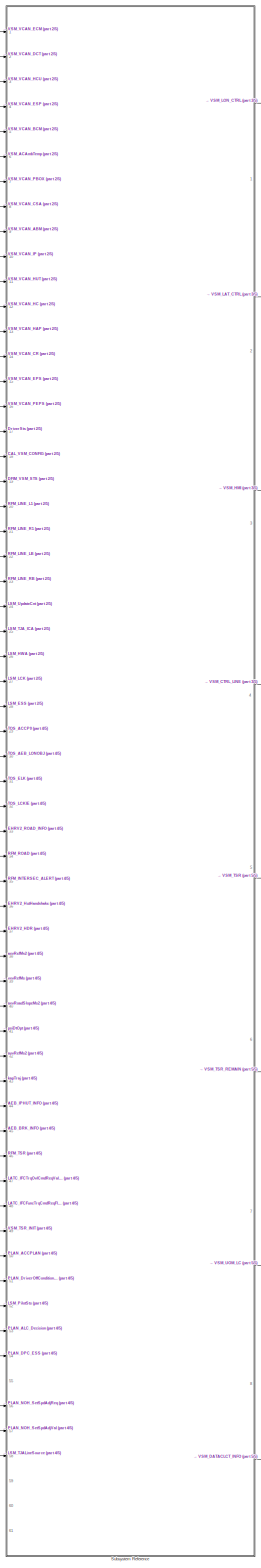
[diagram: root canvas - part 1/5, center side, full height]
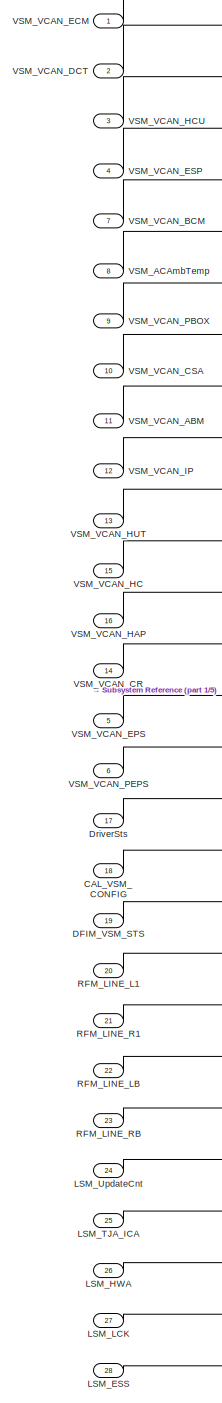
[diagram: root canvas - part 2/5, top left region]
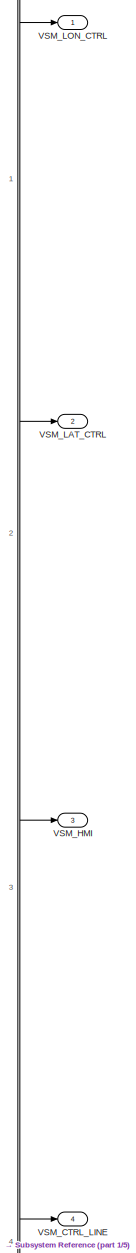
[diagram: root canvas - part 3/5, top right region]
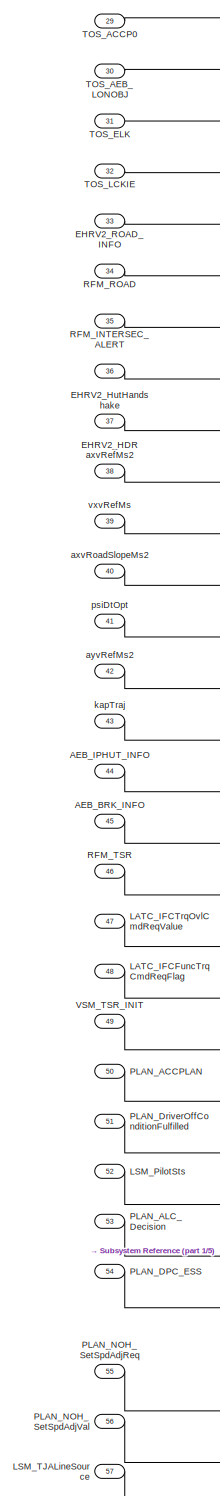
[diagram: root canvas - part 4/5, bottom left region]
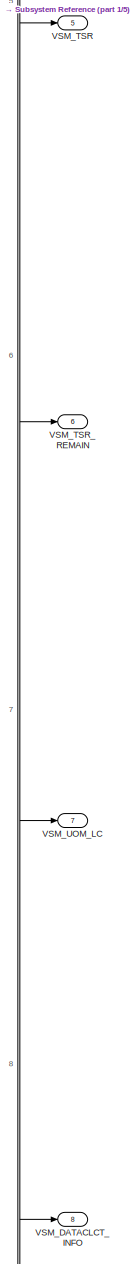
[diagram: root canvas - part 5/5, bottom right region]
MODEL slx_b255fe1d01b4
KIND model
CONFIG AbsTol = auto
CONFIG EnableMultiTasking = off
CONFIG FixedStep = auto
CONFIG InitFcn = , if any(exist('rtifpga_mdlclblib', 'file') ~= 0), rtifpga_mdlclblib('Init', bdroot); end,\n, if any(exist('dsmpb_private', 'file') ~= 0), dsmpb_private('dsmpb_mdlclblib', 'Init', bdroot); end,\n
CONFIG MaxStep = auto
CONFIG MinStep = auto
CONFIG PostLoadFcn = if any(exist('dsrtsu_mdlpostloadfcn', 'file') ~= 0), dsrtsu_mdlpostloadfcn('Execute', bdroot); end
CONFIG RelTol = 1e-3
CONFIG SampleTimeConstraint = Unconstrained
CONFIG SolverName = FixedStepAuto
CONFIG StartTime = 0.0
CONFIG StopTime = Inf
WORKSPACE source: mxarray member
WORKSPACE P_VSM_ESS_DriverInputdSameDire_delaytime: Simulink.Parameter (value not decoded)
WORKSPACE P_VSM_ESS_DrvOverTime_Paramsame: Simulink.Parameter (value not decoded)
WORKSPACE P_VSM_PassSBRSpdIPLimt: Simulink.Parameter (value not decoded)
WORKSPACE P_VSM_TJA_PassSBRSpdExistSlow: Simulink.Parameter (value not decoded)
WORKSPACE User_ACCRes: Simulink.Signal (value not decoded)
WORKSPACE User_ACCSet: Simulink.Signal (value not decoded)
WORKSPACE User_TJASet: Simulink.Signal (value not decoded)
BLOCK [Inport] AEB_BRK_INFO
  BusOutputAsStruct = on
  OutDataTypeStr = Bus: AEB_BRK_INFO_BUS
  Port = 45
  PortDimensions = 1
BLOCK [Inport] AEB_IPHUT_INFO
  BusOutputAsStruct = on
  OutDataTypeStr = Bus: AEB_IPHUT_INFO_BUS
  Port = 44
  PortDimensions = 1
BLOCK [Inport] CAL_VSM_CONFIG
  BusOutputAsStruct = on
  OutDataTypeStr = Bus: CAL_VSM_CONFIG_BUS
  Port = 18
  PortDimensions = 1
BLOCK [Inport] DFIM_VSM_STS
  BusOutputAsStruct = on
  OutDataTypeStr = Bus: DFIM_VSM_STS_BUS
  Port = 19
  PortDimensions = 1
BLOCK [Inport] DriverSts
  BusOutputAsStruct = on
  OutDataTypeStr = uint8
  Port = 17
  PortDimensions = 1
BLOCK [Inport] EHRV2_HDR
  BusOutputAsStruct = on
  OutDataTypeStr = Bus: EHRV2_HDR_BUS
  Port = 37
  PortDimensions = 1
BLOCK [Inport] EHRV2_HutHandshake
  BusOutputAsStruct = on
  OutDataTypeStr = uint8
  Port = 36
  PortDimensions = 1
BLOCK [Inport] EHRV2_ROAD_INFO
  BusOutputAsStruct = on
  OutDataTypeStr = Bus: EHRV2_ROAD_INFO_BUS
  Port = 33
  PortDimensions = 1
BLOCK [Inport] LATC_IFCFuncTrqCmdReqFlag
  BusOutputAsStruct = on
  OutDataTypeStr = uint8
  Port = 48
  PortDimensions = 1
BLOCK [Inport] LATC_IFCTrqOvlCmdReqValue
  BusOutputAsStruct = on
  OutDataTypeStr = single
  Port = 47
  PortDimensions = 1
BLOCK [Inport] LSM_ESS
  BusOutputAsStruct = on
  OutDataTypeStr = Bus: LSM_ESS_BUS
  Port = 28
  PortDimensions = 1
BLOCK [Inport] LSM_HWA
  BusOutputAsStruct = on
  OutDataTypeStr = Bus: LSM_HWA_BUS
  Port = 26
  PortDimensions = 1
BLOCK [Inport] LSM_LCK
  BusOutputAsStruct = on
  OutDataTypeStr = Bus: LSM_LCK_BUS
  Port = 27
  PortDimensions = 1
BLOCK [Inport] LSM_PilotSts
  BusOutputAsStruct = on
  OutDataTypeStr = uint8
  Port = 52
  PortDimensions = 1
BLOCK [Inport] LSM_TJALineSource
  Port = 57
BLOCK [Inport] LSM_TJA_ICA
  BusOutputAsStruct = on
  OutDataTypeStr = Bus: LSM_TJA_ICA_BUS
  Port = 25
  PortDimensions = 1
BLOCK [Inport] LSM_UpdateCnt
  BusOutputAsStruct = on
  OutDataTypeStr = uint32
  Port = 24
  PortDimensions = 1
BLOCK [Inport] PLAN_ACCPLAN
  BusOutputAsStruct = on
  OutDataTypeStr = Bus: PLAN_ACCPLAN_BUS
  Port = 50
  PortDimensions = 1
BLOCK [Inport] PLAN_ALC_Decision
  OutDataTypeStr = Bus: PLAN_ALC_DECS_BUS
  Port = 53
BLOCK [Inport] PLAN_DPC_ESS
  OutDataTypeStr = Bus: PLAN_DPC_ESS_BUS
  Port = 54
BLOCK [Inport] PLAN_DriverOffConditionFulfilled
  BusOutputAsStruct = on
  OutDataTypeStr = boolean
  Port = 51
  PortDimensions = 1
BLOCK [Inport] PLAN_NOH_SetSpdAdjReq
  OutDataTypeStr = boolean
  Port = 55
BLOCK [Inport] PLAN_NOH_SetSpdAdjVal
  OutDataTypeStr = uint8
  Port = 56
BLOCK [Inport] RFM_INTERSEC_ALERT
  BusOutputAsStruct = on
  OutDataTypeStr = Bus: RFM_INTERSEC_ALERT_BUS
  Port = 35
  PortDimensions = 1
BLOCK [Inport] RFM_LINE_L1
  BusOutputAsStruct = on
  OutDataTypeStr = Bus: RFM_LINE_BUS
  Port = 20
  PortDimensions = 1
BLOCK [Inport] RFM_LINE_LB
  BusOutputAsStruct = on
  OutDataTypeStr = Bus: RFM_LINE_BUS
  Port = 22
  PortDimensions = 1
BLOCK [Inport] RFM_LINE_R1
  BusOutputAsStruct = on
  OutDataTypeStr = Bus: RFM_LINE_BUS
  Port = 21
  PortDimensions = 1
BLOCK [Inport] RFM_LINE_RB
  BusOutputAsStruct = on
  OutDataTypeStr = Bus: RFM_LINE_BUS
  Port = 23
  PortDimensions = 1
BLOCK [Inport] RFM_ROAD
  BusOutputAsStruct = on
  OutDataTypeStr = Bus: RFM_ROAD_BUS
  Port = 34
  PortDimensions = 1
BLOCK [Inport] RFM_TSR
  BusOutputAsStruct = on
  OutDataTypeStr = Bus: RFM_TSR_BUS
  Port = 46
  PortDimensions = 1
BLOCK [SubSystem] Subsystem Reference
  Ports = [61, 8]
  ReferencedSubsystem = PvtSubSys_VSM_ALL
  RequestExecContextInheritance = off
BLOCK [Inport] TOS_ACCP0
  BusOutputAsStruct = on
  OutDataTypeStr = Bus: TOS_ACCP0_BUS
  Port = 29
  PortDimensions = 1
BLOCK [Inport] TOS_AEB_LONOBJ
  BusOutputAsStruct = on
  OutDataTypeStr = Bus: TOS_AEB_LONOBJ_BUS
  Port = 30
  PortDimensions = 1
BLOCK [Inport] TOS_ELK
  BusOutputAsStruct = on
  OutDataTypeStr = Bus: TOS_ELK_BUS
  Port = 31
  PortDimensions = 1
BLOCK [Inport] TOS_LCKIE
  BusOutputAsStruct = on
  OutDataTypeStr = Bus: TOS_LCKIE_BUS
  Port = 32
  PortDimensions = 1
BLOCK [Inport] VSM_ACAmbTemp
  BusOutputAsStruct = on
  OutDataTypeStr = Bus: VCAN_AC_MSG_BUS
  Port = 8
  PortDimensions = 1
BLOCK [Outport] VSM_CTRL_LINE
  BusOutputAsStruct = on
  OutDataTypeStr = Bus: VSM_CTRL_LINE_BUS
  Port = 4
  PortDimensions = 1
BLOCK [Outport] VSM_DATACLCT_INFO
  BusOutputAsStruct = on
  OutDataTypeStr = Bus: VSM_DATACLCT_INFO_BUS
  Port = 8
  PortDimensions = 1
BLOCK [Outport] VSM_HMI
  BusOutputAsStruct = on
  OutDataTypeStr = Bus: VSM_HMI_BUS
  Port = 3
  PortDimensions = 1
BLOCK [Outport] VSM_LAT_CTRL
  BusOutputAsStruct = on
  OutDataTypeStr = Bus: VSM_LAT_CTRL_BUS
  Port = 2
BLOCK [Outport] VSM_LON_CTRL
  BusOutputAsStruct = on
  OutDataTypeStr = Bus: VSM_LON_CTRL_BUS
  PortDimensions = 1
BLOCK [Outport] VSM_TSR
  BusOutputAsStruct = on
  OutDataTypeStr = Bus: VSM_TSR_BUS
  Port = 5
  PortDimensions = 1
BLOCK [Inport] VSM_TSR_INIT
  BusOutputAsStruct = on
  OutDataTypeStr = Bus: VSM_TSR_INIT_BUS
  Port = 49
  PortDimensions = 1
BLOCK [Outport] VSM_TSR_REMAIN
  BusOutputAsStruct = on
  OutDataTypeStr = Bus: VSM_TSR_REMAIN_BUS
  Port = 6
BLOCK [Outport] VSM_UOM_LC
  BusOutputAsStruct = on
  OutDataTypeStr = Bus: VSM_UOM_LC_BUS
  Port = 7
  PortDimensions = 1
BLOCK [Inport] VSM_VCAN_ABM
  BusOutputAsStruct = on
  OutDataTypeStr = Bus: VCAN_ABM_MSG_BUS
  Port = 11
  PortDimensions = 1
BLOCK [Inport] VSM_VCAN_BCM
  BusOutputAsStruct = on
  OutDataTypeStr = Bus: VCAN_BCM_MSG_BUS
  Port = 7
  PortDimensions = 1
BLOCK [Inport] VSM_VCAN_CR
  BusOutputAsStruct = on
  OutDataTypeStr = Bus: VCAN_CR_MSG_BUS
  Port = 14
  PortDimensions = 1
BLOCK [Inport] VSM_VCAN_CSA
  BusOutputAsStruct = on
  OutDataTypeStr = Bus: VCAN_CSA_MSG_BUS
  Port = 10
  PortDimensions = 1
BLOCK [Inport] VSM_VCAN_DCT
  BusOutputAsStruct = on
  OutDataTypeStr = Bus: VCAN_DCT_MSG_BUS
  Port = 2
  PortDimensions = 1
BLOCK [Inport] VSM_VCAN_ECM
  BusOutputAsStruct = on
  OutDataTypeStr = Bus: VCAN_ECM_MSG_BUS
  PortDimensions = 1
BLOCK [Inport] VSM_VCAN_EPS
  BusOutputAsStruct = on
  OutDataTypeStr = Bus: VCAN_EPS_MSG_BUS
  Port = 5
  PortDimensions = 1
BLOCK [Inport] VSM_VCAN_ESP
  BusOutputAsStruct = on
  OutDataTypeStr = Bus: VCAN_ESP_MSG_BUS
  Port = 4
  PortDimensions = 1
BLOCK [Inport] VSM_VCAN_HAP
  BusOutputAsStruct = on
  OutDataTypeStr = Bus: VCAN_HAP_MSG_BUS
  Port = 16
  PortDimensions = 1
BLOCK [Inport] VSM_VCAN_HC
  BusOutputAsStruct = on
  OutDataTypeStr = Bus: VCAN_HC_MSG_BUS
  Port = 15
  PortDimensions = 1
BLOCK [Inport] VSM_VCAN_HCU
  BusOutputAsStruct = on
  OutDataTypeStr = Bus: VCAN_HCU_MSG_BUS
  Port = 3
  PortDimensions = 1
BLOCK [Inport] VSM_VCAN_HUT
  BusOutputAsStruct = on
  OutDataTypeStr = Bus: VCAN_HUT_MSG_BUS
  Port = 13
  PortDimensions = 1
BLOCK [Inport] VSM_VCAN_IP
  BusOutputAsStruct = on
  OutDataTypeStr = Bus: VCAN_IP_MSG_BUS
  Port = 12
  PortDimensions = 1
BLOCK [Inport] VSM_VCAN_PBOX
  BusOutputAsStruct = on
  OutDataTypeStr = Bus: VCAN_PBOX_MSG_BUS
  Port = 9
  PortDimensions = 1
BLOCK [Inport] VSM_VCAN_PEPS
  BusOutputAsStruct = on
  OutDataTypeStr = Bus: VCAN_PEPS_MSG_BUS
  Port = 6
  PortDimensions = 1
BLOCK [Inport] axvRefMs2
  BusOutputAsStruct = on
  OutDataTypeStr = single
  Port = 38
  PortDimensions = 1
BLOCK [Inport] axvRoadSlopeMs2
  BusOutputAsStruct = on
  OutDataTypeStr = single
  Port = 40
  PortDimensions = 1
BLOCK [Inport] ayvRefMs2
  BusOutputAsStruct = on
  OutDataTypeStr = single
  Port = 42
  PortDimensions = 1
BLOCK [Inport] kapTraj
  BusOutputAsStruct = on
  OutDataTypeStr = single
  Port = 43
  PortDimensions = 1
BLOCK [Inport] psiDtOpt
  BusOutputAsStruct = on
  OutDataTypeStr = single
  Port = 41
  PortDimensions = 1
BLOCK [Inport] vxvRefMs
  BusOutputAsStruct = on
  OutDataTypeStr = single
  Port = 39
  PortDimensions = 1
LINE AEB_BRK_INFO:1 -> Subsystem Reference:45
LINE AEB_IPHUT_INFO:1 -> Subsystem Reference:44
LINE CAL_VSM_CONFIG:1 -> Subsystem Reference:18
LINE DFIM_VSM_STS:1 -> Subsystem Reference:19
LINE DriverSts:1 -> Subsystem Reference:17
LINE EHRV2_HDR:1 -> Subsystem Reference:37
LINE EHRV2_HutHandshake:1 -> Subsystem Reference:36
LINE EHRV2_ROAD_INFO:1 -> Subsystem Reference:33
LINE LATC_IFCFuncTrqCmdReqFlag:1 -> Subsystem Reference:48
LINE LATC_IFCTrqOvlCmdReqValue:1 -> Subsystem Reference:47
LINE LSM_ESS:1 -> Subsystem Reference:28
LINE LSM_HWA:1 -> Subsystem Reference:26
LINE LSM_LCK:1 -> Subsystem Reference:27
LINE LSM_PilotSts:1 -> Subsystem Reference:52
LINE LSM_TJALineSource:1 -> Subsystem Reference:58
LINE LSM_TJA_ICA:1 -> Subsystem Reference:25
LINE LSM_UpdateCnt:1 -> Subsystem Reference:24
LINE PLAN_ACCPLAN:1 -> Subsystem Reference:50
LINE PLAN_ALC_Decision:1 -> Subsystem Reference:53
LINE PLAN_DPC_ESS:1 -> Subsystem Reference:54
LINE PLAN_DriverOffConditionFulfilled:1 -> Subsystem Reference:51
LINE PLAN_NOH_SetSpdAdjReq:1 -> Subsystem Reference:56
LINE PLAN_NOH_SetSpdAdjVal:1 -> Subsystem Reference:57
LINE RFM_INTERSEC_ALERT:1 -> Subsystem Reference:35
LINE RFM_LINE_L1:1 -> Subsystem Reference:20
LINE RFM_LINE_LB:1 -> Subsystem Reference:22
LINE RFM_LINE_R1:1 -> Subsystem Reference:21
LINE RFM_LINE_RB:1 -> Subsystem Reference:23
LINE RFM_ROAD:1 -> Subsystem Reference:34
LINE RFM_TSR:1 -> Subsystem Reference:46
LINE Subsystem Reference:1 -> VSM_LON_CTRL:1
LINE Subsystem Reference:2 -> VSM_LAT_CTRL:1
LINE Subsystem Reference:3 -> VSM_HMI:1
LINE Subsystem Reference:4 -> VSM_CTRL_LINE:1
LINE Subsystem Reference:5 -> VSM_TSR:1
LINE Subsystem Reference:6 -> VSM_TSR_REMAIN:1
LINE Subsystem Reference:7 -> VSM_UOM_LC:1
LINE Subsystem Reference:8 -> VSM_DATACLCT_INFO:1
LINE TOS_ACCP0:1 -> Subsystem Reference:29
LINE TOS_AEB_LONOBJ:1 -> Subsystem Reference:30
LINE TOS_ELK:1 -> Subsystem Reference:31
LINE TOS_LCKIE:1 -> Subsystem Reference:32
LINE VSM_ACAmbTemp:1 -> Subsystem Reference:6
LINE VSM_TSR_INIT:1 -> Subsystem Reference:49
LINE VSM_VCAN_ABM:1 -> Subsystem Reference:9
LINE VSM_VCAN_BCM:1 -> Subsystem Reference:5
LINE VSM_VCAN_CR:1 -> Subsystem Reference:14
LINE VSM_VCAN_CSA:1 -> Subsystem Reference:8
LINE VSM_VCAN_DCT:1 -> Subsystem Reference:2
LINE VSM_VCAN_ECM:1 -> Subsystem Reference:1
LINE VSM_VCAN_EPS:1 -> Subsystem Reference:15
LINE VSM_VCAN_ESP:1 -> Subsystem Reference:4
LINE VSM_VCAN_HAP:1 -> Subsystem Reference:13
LINE VSM_VCAN_HC:1 -> Subsystem Reference:12
LINE VSM_VCAN_HCU:1 -> Subsystem Reference:3
LINE VSM_VCAN_HUT:1 -> Subsystem Reference:11
LINE VSM_VCAN_IP:1 -> Subsystem Reference:10
LINE VSM_VCAN_PBOX:1 -> Subsystem Reference:7
LINE VSM_VCAN_PEPS:1 -> Subsystem Reference:16
LINE axvRefMs2:1 -> Subsystem Reference:38
LINE axvRoadSlopeMs2:1 -> Subsystem Reference:40
LINE ayvRefMs2:1 -> Subsystem Reference:42
LINE kapTraj:1 -> Subsystem Reference:43
LINE psiDtOpt:1 -> Subsystem Reference:41
LINE vxvRefMs:1 -> Subsystem Reference:39
